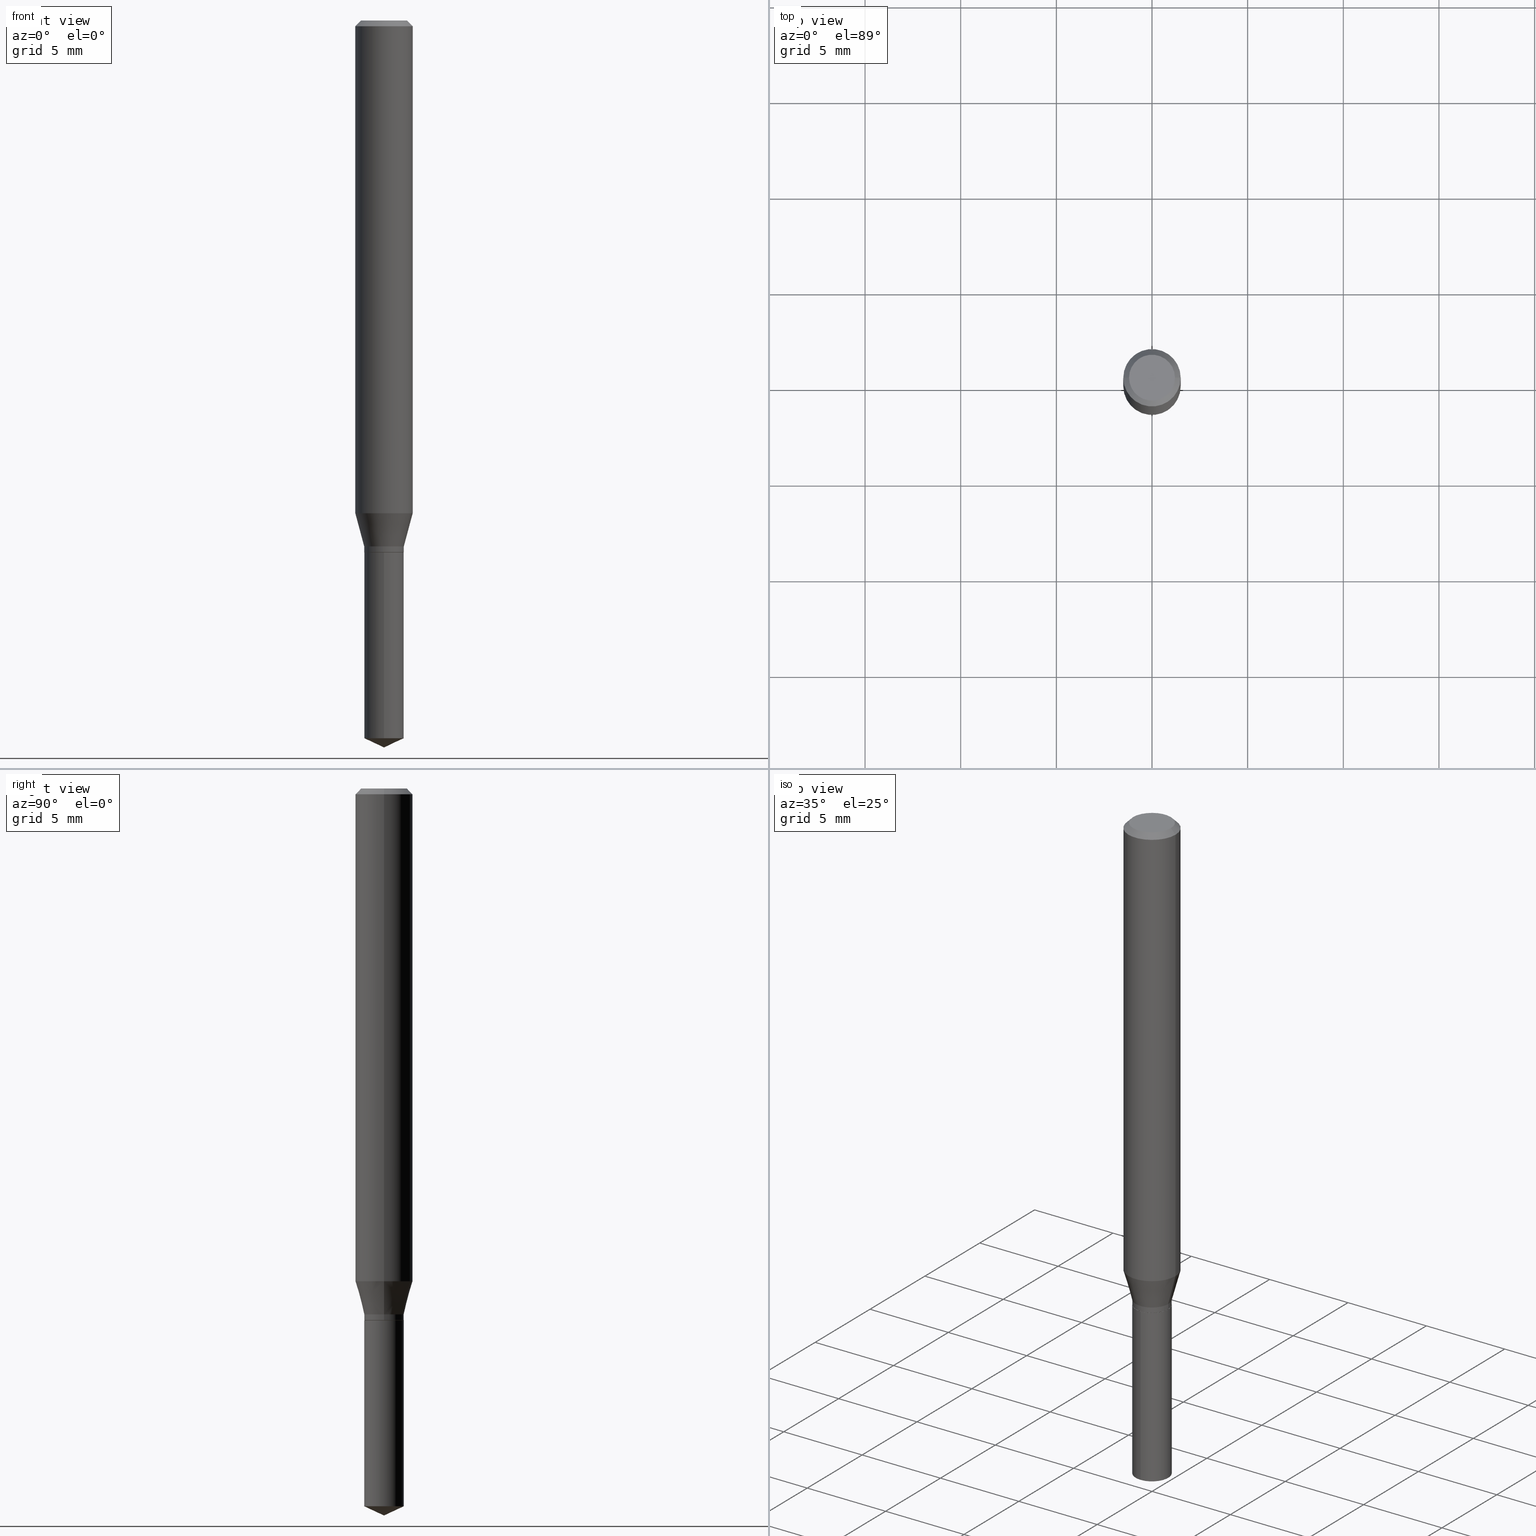
[diagram: canonical four-view strip — front | top / right | iso, engineering-drawing reading convention]
A machine part, canonical four-view strip (front | top / right | iso — engineering-drawing reading convention). The complete STEP part file that produces these views, byte-faithful:
ISO-10303-21;
HEADER;
FILE_DESCRIPTION (( 'STEP AP203' ),
    '1' );
FILE_NAME ('07609.STEP',
    '2024-04-23T23:42:43',
    ( '' ),
    ( '' ),
    'SwSTEP 2.0',
    'SolidWorks 2023',
    '' );
FILE_SCHEMA (( 'CONFIG_CONTROL_DESIGN' ));
ENDSEC;

DATA;
#1 = DIRECTION ( 'NONE',  ( -6.982962677686265922E-15, -1.000000000000000000, 3.351960728422408753E-15 ) ) ;
#2 = PERSON_AND_ORGANIZATION ( #489, #291 ) ;
#3 = PRODUCT_DEFINITION_SHAPE ( 'NONE', 'NONE',  #364 ) ;
#4 = CIRCLE ( 'NONE', #253, 0.04025000000000000105 ) ;
#5 = DIRECTION ( 'NONE',  ( -6.982962677686265922E-15, -1.000000000000000000, 6.703921456844817506E-15 ) ) ;
#6 = EDGE_CURVE ( 'NONE', #76, #73, #188, .T. ) ;
#7 = DIRECTION ( 'NONE',  ( 1.000000000000000000, -6.982962677686266711E-15, 4.876185090822587894E-29 ) ) ;
#8 = ORIENTED_EDGE ( 'NONE', *, *, #286, .F. ) ;
#9 = EDGE_CURVE ( 'NONE', #41, #119, #343, .T. ) ;
#10 = FACE_OUTER_BOUND ( 'NONE', #69, .T. ) ;
#11 = CARTESIAN_POINT ( 'NONE',  ( 2.676565608369631794E-29, -3.821426325363822773E-15, -1.094499999999999806 ) ) ;
#12 = CONICAL_SURFACE ( 'NONE', #360, 0.05905000000000000526, 0.7853981633974452814 ) ;
#13 = CARTESIAN_POINT ( 'NONE',  ( -0.04025000000000000105, -3.535432874220382392E-15, -1.094499999999999806 ) ) ;
#14 = DESIGN_CONTEXT ( 'detailed design', #209, 'design' ) ;
#15 = DIRECTION ( 'NONE',  ( 1.000000000000000000, -6.982962677686266711E-15, 0.000000000000000000 ) ) ;
#16 = LINE ( 'NONE', #83, #94 ) ;
#17 = DIRECTION ( 'NONE',  ( -2.445468806185136597E-29, 3.491481338843145583E-15, 1.000000000000000000 ) ) ;
#18 = DIRECTION ( 'NONE',  ( -6.982962677686265922E-15, -1.000000000000000000, 6.703921456844817506E-15 ) ) ;
#19 = CARTESIAN_POINT ( 'NONE',  ( -0.04075000000000000150, -3.509709254039927609E-15, -1.093999999999999861 ) ) ;
#20 = CARTESIAN_POINT ( 'NONE',  ( 0.04724000000000000421, -3.852183633974369838E-16, -3.380025165621689721E-19 ) ) ;
#21 = CARTESIAN_POINT ( 'NONE',  ( 2.675342873966538993E-29, -3.819680584694400481E-15, -1.093999999999999861 ) ) ;
#22 = AXIS2_PLACEMENT_3D ( 'NONE', #78, #432, #15 ) ;
#23 = FACE_OUTER_BOUND ( 'NONE', #270, .T. ) ;
#24 = DIRECTION ( 'NONE',  ( -2.445468806185136597E-29, 3.491481338843145583E-15, 1.000000000000000000 ) ) ;
#25 = EDGE_LOOP ( 'NONE', ( #349, #458, #339 ) ) ;
#26 = DIRECTION ( 'NONE',  ( -6.982962677686267499E-15, -1.000000000000000000, 3.520397390770466886E-15 ) ) ;
#27 = EDGE_CURVE ( 'NONE', #302, #35, #271, .T. ) ;
#28 = CALENDAR_DATE ( 2024, 23, 4 ) ;
#29 = EDGE_CURVE ( 'NONE', #235, #150, #477, .T. ) ;
#30 = AXIS2_PLACEMENT_3D ( 'NONE', #352, #88, #171 ) ;
#31 = APPROVAL_PERSON_ORGANIZATION ( #70, #399, #36 ) ;
#32 = ORIENTED_EDGE ( 'NONE', *, *, #197, .F. ) ;
#33 = DIRECTION ( 'NONE',  ( -2.445468806185136597E-29, 3.491481338843145583E-15, 1.000000000000000000 ) ) ;
#34 = PERSON_AND_ORGANIZATION ( #489, #291 ) ;
#35 = VERTEX_POINT ( 'NONE', #304 ) ;
#36 = APPROVAL_ROLE ( '' ) ;
#37 = CIRCLE ( 'NONE', #168, 0.05905000000000013016 ) ;
#38 = PRODUCT ( '07609', '07609', '', ( #368 ) ) ;
#39 = AXIS2_PLACEMENT_3D ( 'NONE', #365, #101, #173 ) ;
#40 = CARTESIAN_POINT ( 'NONE',  ( 3.612193201683081451E-29, -5.157265401199855389E-15, -1.477097962930183694 ) ) ;
#41 = VERTEX_POINT ( 'NONE', #457 ) ;
#42 = EDGE_LOOP ( 'NONE', ( #110, #122, #308, #266 ) ) ;
#43 = ADVANCED_FACE ( 'NONE', ( #198 ), #132, .T. ) ;
#44 = CARTESIAN_POINT ( 'NONE',  ( 2.676565608369631794E-29, -3.821426325363822773E-15, -1.094499999999999806 ) ) ;
#45 = CARTESIAN_POINT ( 'NONE',  ( -0.04724000000000000421, 3.504923541997677355E-16, -3.380025165670481712E-19 ) ) ;
#46 = ORIENTED_EDGE ( 'NONE', *, *, #384, .F. ) ;
#47 = AXIS2_PLACEMENT_3D ( 'NONE', #237, #161, #269 ) ;
#48 = DIRECTION ( 'NONE',  ( -2.445468806185136597E-29, 3.491481338843145583E-15, 1.000000000000000000 ) ) ;
#49 = FACE_OUTER_BOUND ( 'NONE', #179, .T. ) ;
#50 = DIRECTION ( 'NONE',  ( 2.445468806185136597E-29, -3.491481338843145583E-15, -1.000000000000000000 ) ) ;
#51 = DIRECTION ( 'NONE',  ( -2.445468806185136597E-29, 3.491481338843145583E-15, 1.000000000000000000 ) ) ;
#52 = DIRECTION ( 'NONE',  ( -2.445468806185136597E-29, 3.491481338843145583E-15, 1.000000000000000000 ) ) ;
#53 = AXIS2_PLACEMENT_3D ( 'NONE', #11, #424, #233 ) ;
#54 = VECTOR ( 'NONE', #434, 39.37007874015748143 ) ;
#55 = ORIENTED_EDGE ( 'NONE', *, *, #247, .F. ) ;
#56 = CARTESIAN_POINT ( 'NONE',  ( 2.676565608369631794E-29, -3.821426325363822773E-15, -1.094499999999999806 ) ) ;
#57 = DIRECTION ( 'NONE',  ( -2.445468806185136597E-29, 3.491481338843145583E-15, 1.000000000000000000 ) ) ;
#58 = EDGE_CURVE ( 'NONE', #35, #302, #141, .T. ) ;
#59 =( NAMED_UNIT ( * ) SI_UNIT ( $, .STERADIAN. ) SOLID_ANGLE_UNIT ( ) );
#60 = DIRECTION ( 'NONE',  ( -2.445468806185136597E-29, 3.491481338843145583E-15, 1.000000000000000000 ) ) ;
#61 = CARTESIAN_POINT ( 'NONE',  ( 0.04075000000000000150, -4.063385982145651845E-15, -1.082300000000000040 ) ) ;
#62 = VERTEX_POINT ( 'NONE', #129 ) ;
#63 = AXIS2_PLACEMENT_3D ( 'NONE', #238, #310, #236 ) ;
#64 = LENGTH_MEASURE_WITH_UNIT ( LENGTH_MEASURE( 0.02539999999999999897 ), #406 );
#65 = ADVANCED_FACE ( 'NONE', ( #357 ), #396, .T. ) ;
#66 = ORIENTED_EDGE ( 'NONE', *, *, #144, .F. ) ;
#67 = VECTOR ( 'NONE', #441, 39.37007874015748854 ) ;
#68 = CLOSED_SHELL ( 'NONE', ( #340, #65, #43, #431, #250, #348, #162, #323, #379, #448, #128, #75 ) ) ;
#69 = EDGE_LOOP ( 'NONE', ( #71, #152, #145, #227 ) ) ;
#70 = PERSON_AND_ORGANIZATION ( #489, #291 ) ;
#71 = ORIENTED_EDGE ( 'NONE', *, *, #89, .F. ) ;
#72 = PERSON_AND_ORGANIZATION_ROLE ( 'classification_officer' ) ;
#73 = VERTEX_POINT ( 'NONE', #126 ) ;
#74 = AXIS2_PLACEMENT_3D ( 'NONE', #242, #361, #476 ) ;
#75 = ADVANCED_FACE ( 'NONE', ( #166 ), #279, .T. ) ;
#76 = VERTEX_POINT ( 'NONE', #19 ) ;
#77 = ORIENTED_EDGE ( 'NONE', *, *, #282, .T. ) ;
#78 = CARTESIAN_POINT ( 'NONE',  ( 2.676565608369631794E-29, -3.821426325363822773E-15, -1.094499999999999806 ) ) ;
#79 = CARTESIAN_POINT ( 'NONE',  ( -0.05905000000000006771, 4.195754854663396409E-16, -2.904631170795525045E-30 ) ) ;
#80 = DIRECTION ( 'NONE',  ( -2.445458899330790108E-29, 3.491495526022433599E-15, 1.000000000000000000 ) ) ;
#81 = DIRECTION ( 'NONE',  ( 1.000000000000000000, -6.982962677686265922E-15, 4.876176775795935793E-29 ) ) ;
#82 = DIRECTION ( 'NONE',  ( 1.000000000000000000, -6.982962677686267499E-15, 0.000000000000000000 ) ) ;
#83 = CARTESIAN_POINT ( 'NONE',  ( -0.04075000000000000150, 2.895461648222408364E-16, -2.004466049278874144E-30 ) ) ;
#84 = LOCAL_TIME ( 19, 42, 43.00000000000000000, #186 ) ;
#85 = ORIENTED_EDGE ( 'NONE', *, *, #27, .T. ) ;
#86 = EDGE_CURVE ( 'NONE', #62, #154, #417, .T. ) ;
#87 = CYLINDRICAL_SURFACE ( 'NONE', #63, 0.04075000000000000150 ) ;
#88 = DIRECTION ( 'NONE',  ( -2.445468806185136597E-29, 3.491481338843145583E-15, 1.000000000000000000 ) ) ;
#89 = EDGE_CURVE ( 'NONE', #223, #374, #464, .T. ) ;
#90 = CARTESIAN_POINT ( 'NONE',  ( -9.261924752013118283E-28, 1.322368428517963298E-13, 37.87397874015748300 ) ) ;
#91 = CARTESIAN_POINT ( 'NONE',  ( -2.845557291156885649E-16, -0.04075000000000382483, -1.094499999999999806 ) ) ;
#92 = CARTESIAN_POINT ( 'NONE',  ( 0.04075000000000000150, -4.063385982145651845E-15, -1.082300000000000040 ) ) ;
#93 = CARTESIAN_POINT ( 'NONE',  ( 2.895461648222769761E-16, 0.04074999999999485284, -1.477097962930183916 ) ) ;
#94 = VECTOR ( 'NONE', #390, 39.37007874015748143 ) ;
#95 = CARTESIAN_POINT ( 'NONE',  ( 3.658651059288795076E-29, -5.223626456482161457E-15, -1.496099999999999985 ) ) ;
#96 = LINE ( 'NONE', #138, #67 ) ;
#97 = LINE ( 'NONE', #324, #264 ) ;
#98 = DIRECTION ( 'NONE',  ( 0.7071067811865453523, -7.319954787623248157E-15, -0.7071067811865496822 ) ) ;
#99 = LINE ( 'NONE', #216, #204 ) ;
#100 = CONICAL_SURFACE ( 'NONE', #397, 84.42940631927402251, 1.134464013796314452 ) ;
#101 = DIRECTION ( 'NONE',  ( -2.445468806185136597E-29, 3.491481338843145583E-15, 1.000000000000000000 ) ) ;
#102 = ORIENTED_EDGE ( 'NONE', *, *, #439, .T. ) ;
#103 = ADVANCED_BREP_SHAPE_REPRESENTATION ( '07609', ( #246, #244, #366 ), #319 ) ;
#104 = APPROVAL_ROLE ( '' ) ;
#105 = ORIENTED_EDGE ( 'NONE', *, *, #355, .F. ) ;
#106 = EDGE_CURVE ( 'NONE', #187, #374, #484, .T. ) ;
#107 = ORIENTED_EDGE ( 'NONE', *, *, #203, .T. ) ;
#108 = CIRCLE ( 'NONE', #226, 0.05905000000000000526 ) ;
#109 = DATE_AND_TIME ( #28, #309 ) ;
#110 = ORIENTED_EDGE ( 'NONE', *, *, #155, .F. ) ;
#111 = ORIENTED_EDGE ( 'NONE', *, *, #155, .T. ) ;
#112 = PERSON_AND_ORGANIZATION ( #489, #291 ) ;
#113 = DIRECTION ( 'NONE',  ( -2.445458899330790108E-29, 3.491495526022433205E-15, 1.000000000000000000 ) ) ;
#114 = PERSON_AND_ORGANIZATION_ROLE ( 'design_owner' ) ;
#115 = ORIENTED_EDGE ( 'NONE', *, *, #86, .F. ) ;
#116 = CC_DESIGN_PERSON_AND_ORGANIZATION_ASSIGNMENT ( #143, #251, ( #273 ) ) ;
#117 = VECTOR ( 'NONE', #473, 39.37007874015748854 ) ;
#118 = DIRECTION ( 'NONE',  ( -0.7071067811865453523, 2.468850131082234184E-15, -0.7071067811865496822 ) ) ;
#119 = VERTEX_POINT ( 'NONE', #91 ) ;
#120 = CARTESIAN_POINT ( 'NONE',  ( 2.479713855790130856E-29, -3.540374193800521229E-15, -1.014003470221489289 ) ) ;
#121 = DIRECTION ( 'NONE',  ( 1.000000000000000000, -6.982962677686266711E-15, 0.000000000000000000 ) ) ;
#122 = ORIENTED_EDGE ( 'NONE', *, *, #144, .T. ) ;
#123 = DIRECTION ( 'NONE',  ( -2.445468806185136597E-29, 3.491481338843145583E-15, 1.000000000000000000 ) ) ;
#124 = CARTESIAN_POINT ( 'NONE',  ( 2.646730888934173156E-29, -3.778830253029936509E-15, -1.082300000000000040 ) ) ;
#125 = VECTOR ( 'NONE', #118, 39.37007874015748143 ) ;
#126 = CARTESIAN_POINT ( 'NONE',  ( 0.04075000000000000150, -4.104236313810115818E-15, -1.093999999999999861 ) ) ;
#127 = SECURITY_CLASSIFICATION ( '', '', #456 ) ;
#128 = ADVANCED_FACE ( 'NONE', ( #49 ), #230, .F. ) ;
#129 = CARTESIAN_POINT ( 'NONE',  ( 0.04025000000000000105, -4.102490573140695103E-15, -1.094499999999999806 ) ) ;
#130 = VERTEX_POINT ( 'NONE', #240 ) ;
#131 = CYLINDRICAL_SURFACE ( 'NONE', #346, 0.04075000000000000150 ) ;
#132 = CYLINDRICAL_SURFACE ( 'NONE', #290, 0.05905000000000006771 ) ;
#133 = VERTEX_POINT ( 'NONE', #386 ) ;
#134 = CARTESIAN_POINT ( 'NONE',  ( -0.05905000000000011628, -3.120798708334180159E-15, -1.014003470221489289 ) ) ;
#135 = AXIS2_PLACEMENT_3D ( 'NONE', #40, #148, #5 ) ;
#136 = CARTESIAN_POINT ( 'NONE',  ( 0.05905000000000000526, -4.463468013801467941E-16, -0.01181000000000007738 ) ) ;
#137 = DIRECTION ( 'NONE',  ( 2.445468806185136597E-29, -3.491481338843145583E-15, -1.000000000000000000 ) ) ;
#138 = CARTESIAN_POINT ( 'NONE',  ( 3.658672935554494692E-29, -5.223595400746700193E-15, -1.496099999999999985 ) ) ;
#139 =( CONVERSION_BASED_UNIT ( 'INCH', #64 ) LENGTH_UNIT ( ) NAMED_UNIT ( #373 ) );
#140 = CARTESIAN_POINT ( 'NONE',  ( 0.000000000000000000, 0.000000000000000000, 0.000000000000000000 ) ) ;
#141 = CIRCLE ( 'NONE', #241, 0.04075000000000000150 ) ;
#142 = COORDINATED_UNIVERSAL_TIME_OFFSET ( 5, 0, .BEHIND. ) ;
#143 = PERSON_AND_ORGANIZATION ( #489, #291 ) ;
#144 = EDGE_CURVE ( 'NONE', #154, #62, #4, .T. ) ;
#145 = ORIENTED_EDGE ( 'NONE', *, *, #384, .T. ) ;
#146 = APPROVAL_ROLE ( '' ) ;
#147 = APPLICATION_CONTEXT ( 'configuration controlled 3d designs of mechanical parts and assemblies' ) ;
#148 = DIRECTION ( 'NONE',  ( -2.445458899330790108E-29, 3.491495526022433205E-15, 1.000000000000000000 ) ) ;
#149 = AXIS2_PLACEMENT_3D ( 'NONE', #490, #33, #185 ) ;
#150 = VERTEX_POINT ( 'NONE', #45 ) ;
#151 = AXIS2_PLACEMENT_3D ( 'NONE', #202, #234, #81 ) ;
#152 = ORIENTED_EDGE ( 'NONE', *, *, #239, .T. ) ;
#153 = ORIENTED_EDGE ( 'NONE', *, *, #479, .T. ) ;
#154 = VERTEX_POINT ( 'NONE', #321 ) ;
#155 = EDGE_CURVE ( 'NONE', #154, #76, #267, .T. ) ;
#156 = DIRECTION ( 'NONE',  ( 1.000000000000000000, -6.982962677686266711E-15, 4.876176775795936353E-29 ) ) ;
#157 = ORIENTED_EDGE ( 'NONE', *, *, #106, .T. ) ;
#158 = SHAPE_DEFINITION_REPRESENTATION ( #3, #103 ) ;
#159 = CIRCLE ( 'NONE', #436, 0.04075000000000000150 ) ;
#160 = CARTESIAN_POINT ( 'NONE',  ( -0.05905000000000000526, -1.371228808739789197E-15, -0.01181000000000007738 ) ) ;
#161 = DIRECTION ( 'NONE',  ( -2.445468806185136597E-29, 3.491481338843145583E-15, 1.000000000000000000 ) ) ;
#162 = ADVANCED_FACE ( 'NONE', ( #276 ), #263, .T. ) ;
#163 = CARTESIAN_POINT ( 'NONE',  ( 0.05905000000000000526, -4.535783407291119586E-16, -0.01181000000000007738 ) ) ;
#164 = ORIENTED_EDGE ( 'NONE', *, *, #239, .F. ) ;
#165 = FACE_OUTER_BOUND ( 'NONE', #25, .T. ) ;
#166 = FACE_OUTER_BOUND ( 'NONE', #42, .T. ) ;
#167 = CC_DESIGN_PERSON_AND_ORGANIZATION_ASSIGNMENT ( #450, #72, ( #127 ) ) ;
#168 = AXIS2_PLACEMENT_3D ( 'NONE', #212, #24, #409 ) ;
#169 = CARTESIAN_POINT ( 'NONE',  ( 2.888098660104665518E-31, -4.123439461173782112E-17, -0.01181000000000007738 ) ) ;
#170 = CIRCLE ( 'NONE', #443, 0.04075000000000000150 ) ;
#171 = DIRECTION ( 'NONE',  ( 1.000000000000000000, -6.982962677686266711E-15, 0.000000000000000000 ) ) ;
#172 = CARTESIAN_POINT ( 'NONE',  ( 2.888098660104665518E-31, -4.123439461173782112E-17, -0.01181000000000007738 ) ) ;
#173 = DIRECTION ( 'NONE',  ( 1.000000000000000000, -6.982962677686266711E-15, 0.000000000000000000 ) ) ;
#174 = LINE ( 'NONE', #328, #468 ) ;
#175 = CARTESIAN_POINT ( 'NONE',  ( 0.000000000000000000, 0.000000000000000000, 0.000000000000000000 ) ) ;
#176 = CLOSED_SHELL ( 'NONE', ( #362, #395, #342, #404, #178 ) ) ;
#177 = CARTESIAN_POINT ( 'NONE',  ( 4.132873053354867254E-48, -5.900647395337818946E-34, -1.690012582823346072E-19 ) ) ;
#178 = ADVANCED_FACE ( 'NONE', ( #325 ), #474, .F. ) ;
#179 = EDGE_LOOP ( 'NONE', ( #115, #66 ) ) ;
#180 = DATE_AND_TIME ( #190, #84 ) ;
#181 = DIRECTION ( 'NONE',  ( 0.7071067811865232589, -2.468850131082003836E-15, 0.7071067811865715536 ) ) ;
#182 = AXIS2_PLACEMENT_3D ( 'NONE', #120, #232, #465 ) ;
#183 = CC_DESIGN_APPROVAL ( #358, ( #364 ) ) ;
#184 = ORIENTED_EDGE ( 'NONE', *, *, #193, .T. ) ;
#185 = DIRECTION ( 'NONE',  ( 1.000000000000000000, -6.982962677686266711E-15, 0.000000000000000000 ) ) ;
#186 = COORDINATED_UNIVERSAL_TIME_OFFSET ( 5, 0, .BEHIND. ) ;
#187 = VERTEX_POINT ( 'NONE', #163 ) ;
#188 = CIRCLE ( 'NONE', #149, 0.04075000000000000150 ) ;
#189 = CIRCLE ( 'NONE', #345, 0.04724000000000000421 ) ;
#190 = CALENDAR_DATE ( 2024, 23, 4 ) ;
#191 = CARTESIAN_POINT ( 'NONE',  ( 8.265746106709734507E-48, -1.180129479067563789E-33, -3.380025165646692144E-19 ) ) ;
#192 = ORIENTED_EDGE ( 'NONE', *, *, #203, .F. ) ;
#193 = EDGE_CURVE ( 'NONE', #130, #475, #334, .T. ) ;
#194 = DIRECTION ( 'NONE',  ( -2.445458899330790108E-29, 3.491495526022433205E-15, 1.000000000000000000 ) ) ;
#195 = CARTESIAN_POINT ( 'NONE',  ( 3.612193201683081451E-29, -5.157265401199855389E-15, -1.477097962930183694 ) ) ;
#196 = ORIENTED_EDGE ( 'NONE', *, *, #439, .F. ) ;
#197 = EDGE_CURVE ( 'NONE', #76, #130, #16, .T. ) ;
#198 = FACE_OUTER_BOUND ( 'NONE', #418, .T. ) ;
#199 = ORIENTED_EDGE ( 'NONE', *, *, #86, .T. ) ;
#200 = PRODUCT_RELATED_PRODUCT_CATEGORY ( 'detail', '', ( #38 ) ) ;
#201 = CARTESIAN_POINT ( 'NONE',  ( 2.646730888934173156E-29, -3.778830253029936509E-15, -1.082300000000000040 ) ) ;
#202 = CARTESIAN_POINT ( 'NONE',  ( 2.676565608369631794E-29, -3.821426325363822773E-15, -1.094499999999999806 ) ) ;
#203 = EDGE_CURVE ( 'NONE', #475, #130, #159, .T. ) ;
#204 = VECTOR ( 'NONE', #181, 39.37007874015748854 ) ;
#205 = DIRECTION ( 'NONE',  ( 1.000000000000000000, -6.982962677686266711E-15, 4.876185090822587894E-29 ) ) ;
#206 = DIRECTION ( 'NONE',  ( 1.000000000000000000, -6.982962677686266711E-15, 0.000000000000000000 ) ) ;
#207 = EDGE_CURVE ( 'NONE', #475, #133, #483, .T. ) ;
#208 = DIRECTION ( 'NONE',  ( -1.000000000000000000, 6.982962677686267499E-15, 0.000000000000000000 ) ) ;
#209 = APPLICATION_CONTEXT ( 'configuration controlled 3d designs of mechanical parts and assemblies' ) ;
#210 = CARTESIAN_POINT ( 'NONE',  ( -9.261924752013118283E-28, 1.322368428517963298E-13, 37.87397874015748300 ) ) ;
#211 = AXIS2_PLACEMENT_3D ( 'NONE', #344, #113, #1 ) ;
#212 = CARTESIAN_POINT ( 'NONE',  ( 2.479713855790130856E-29, -3.540374193800521229E-15, -1.014003470221489289 ) ) ;
#213 = CONICAL_SURFACE ( 'NONE', #272, 84.42940631927402251, 1.134464013796314452 ) ;
#214 = APPROVAL_PERSON_ORGANIZATION ( #376, #375, #104 ) ;
#215 = LINE ( 'NONE', #95, #117 ) ;
#216 = CARTESIAN_POINT ( 'NONE',  ( 0.04025000000000000105, -4.102490573140695103E-15, -1.094499999999999806 ) ) ;
#217 = APPLICATION_PROTOCOL_DEFINITION ( 'international standard', 'config_control_design', 1994, #209 ) ;
#218 = DIRECTION ( 'NONE',  ( -2.445468806185136877E-29, 3.491481338843145188E-15, 1.000000000000000000 ) ) ;
#219 = PERSON_AND_ORGANIZATION_ROLE ( 'creator' ) ;
#220 = EDGE_LOOP ( 'NONE', ( #32, #367, #296, #453 ) ) ;
#221 = ORIENTED_EDGE ( 'NONE', *, *, #317, .F. ) ;
#222 = CALENDAR_DATE ( 2024, 23, 4 ) ;
#223 = VERTEX_POINT ( 'NONE', #134 ) ;
#224 = COORDINATED_UNIVERSAL_TIME_OFFSET ( 5, 0, .BEHIND. ) ;
#225 = ORIENTED_EDGE ( 'NONE', *, *, #207, .F. ) ;
#226 = AXIS2_PLACEMENT_3D ( 'NONE', #169, #123, #82 ) ;
#227 = ORIENTED_EDGE ( 'NONE', *, *, #332, .F. ) ;
#228 = ORIENTED_EDGE ( 'NONE', *, *, #106, .F. ) ;
#229 = FACE_OUTER_BOUND ( 'NONE', #455, .T. ) ;
#230 = PLANE ( 'NONE',  #151 ) ;
#231 = ORIENTED_EDGE ( 'NONE', *, *, #289, .F. ) ;
#232 = DIRECTION ( 'NONE',  ( -2.445468806185136597E-29, 3.491481338843145583E-15, 1.000000000000000000 ) ) ;
#233 = DIRECTION ( 'NONE',  ( 6.982962677686265922E-15, 1.000000000000000000, -3.491495526022433599E-15 ) ) ;
#234 = DIRECTION ( 'NONE',  ( -2.438088387897960049E-29, 3.491481338843145188E-15, 1.000000000000000000 ) ) ;
#235 = VERTEX_POINT ( 'NONE', #20 ) ;
#236 = DIRECTION ( 'NONE',  ( 1.000000000000000000, -6.982962677686266711E-15, 4.876176775795935793E-29 ) ) ;
#237 = CARTESIAN_POINT ( 'NONE',  ( 2.676565608369631794E-29, -3.821426325363822773E-15, -1.094499999999999806 ) ) ;
#238 = CARTESIAN_POINT ( 'NONE',  ( 0.000000000000000000, 0.000000000000000000, 0.000000000000000000 ) ) ;
#239 = EDGE_CURVE ( 'NONE', #223, #133, #37, .T. ) ;
#240 = CARTESIAN_POINT ( 'NONE',  ( -0.04075000000000000150, -3.509709254039927609E-15, -1.082300000000000040 ) ) ;
#241 = AXIS2_PLACEMENT_3D ( 'NONE', #195, #430, #18 ) ;
#242 = CARTESIAN_POINT ( 'NONE',  ( 2.676565608369631794E-29, -3.821426325363822773E-15, -1.094499999999999806 ) ) ;
#243 = CYLINDRICAL_SURFACE ( 'NONE', #442, 0.04075000000000000150 ) ;
#244 = MANIFOLD_SOLID_BREP ( 'Body-Move/Copy2[2]', #68 ) ;
#245 = DIRECTION ( 'NONE',  ( -6.982962677686265922E-15, -1.000000000000000000, 3.351960728422408753E-15 ) ) ;
#246 = MANIFOLD_SOLID_BREP ( 'Body-Move/Copy2[1]', #176 ) ;
#247 = EDGE_CURVE ( 'NONE', #73, #475, #174, .T. ) ;
#248 = AXIS2_PLACEMENT_3D ( 'NONE', #44, #194, #351 ) ;
#249 = AXIS2_PLACEMENT_3D ( 'NONE', #177, #277, #331 ) ;
#250 = ADVANCED_FACE ( 'NONE', ( #481 ), #243, .T. ) ;
#251 = PERSON_AND_ORGANIZATION_ROLE ( 'design_supplier' ) ;
#252 = ORIENTED_EDGE ( 'NONE', *, *, #350, .F. ) ;
#253 = AXIS2_PLACEMENT_3D ( 'NONE', #354, #394, #121 ) ;
#254 = ORIENTED_EDGE ( 'NONE', *, *, #317, .T. ) ;
#255 = AXIS2_PLACEMENT_3D ( 'NONE', #191, #347, #7 ) ;
#256 = COORDINATED_UNIVERSAL_TIME_OFFSET ( 5, 0, .BEHIND. ) ;
#257 = ORIENTED_EDGE ( 'NONE', *, *, #58, .T. ) ;
#258 = EDGE_LOOP ( 'NONE', ( #107, #411, #221, #225 ) ) ;
#259 = APPROVAL_DATE_TIME ( #180, #375 ) ;
#260 = ORIENTED_EDGE ( 'NONE', *, *, #58, .F. ) ;
#261 = CALENDAR_DATE ( 2024, 23, 4 ) ;
#262 = ORIENTED_EDGE ( 'NONE', *, *, #472, .F. ) ;
#263 = CONICAL_SURFACE ( 'NONE', #371, 0.04075000000000000150, 0.2617993877991500740 ) ;
#264 = VECTOR ( 'NONE', #402, 39.37007874015748143 ) ;
#265 = DIRECTION ( 'NONE',  ( -2.445458899330790108E-29, 3.491495526022433205E-15, 1.000000000000000000 ) ) ;
#266 = ORIENTED_EDGE ( 'NONE', *, *, #6, .F. ) ;
#267 = LINE ( 'NONE', #13, #388 ) ;
#268 = CC_DESIGN_DATE_AND_TIME_ASSIGNMENT ( #297, #301, ( #364 ) ) ;
#269 = DIRECTION ( 'NONE',  ( 1.000000000000000000, -6.982962677686266711E-15, 0.000000000000000000 ) ) ;
#270 = EDGE_LOOP ( 'NONE', ( #326, #287 ) ) ;
#271 = CIRCLE ( 'NONE', #135, 0.04075000000000000150 ) ;
#272 = AXIS2_PLACEMENT_3D ( 'NONE', #90, #265, #315 ) ;
#273 = PRODUCT_DEFINITION_FORMATION_WITH_SPECIFIED_SOURCE ( 'ANY', '', #38, .NOT_KNOWN. ) ;
#274 = FACE_OUTER_BOUND ( 'NONE', #220, .T. ) ;
#275 = DIRECTION ( 'NONE',  ( -2.445468806185136877E-29, 3.491481338843145188E-15, 1.000000000000000000 ) ) ;
#276 = FACE_OUTER_BOUND ( 'NONE', #341, .T. ) ;
#277 = DIRECTION ( 'NONE',  ( 2.438088387897960049E-29, -3.491481338843145188E-15, -1.000000000000000000 ) ) ;
#278 = DIRECTION ( 'NONE',  ( -0.2588190451025213501, 5.211531920934551042E-15, 0.9659258262890682012 ) ) ;
#279 = CONICAL_SURFACE ( 'NONE', #47, 0.04025000000000000105, 0.7853981633974141952 ) ;
#280 = DIRECTION ( 'NONE',  ( -2.445458899330790108E-29, 3.491495526022433205E-15, 1.000000000000000000 ) ) ;
#281 = CC_DESIGN_SECURITY_CLASSIFICATION ( #127, ( #273 ) ) ;
#282 = EDGE_CURVE ( 'NONE', #312, #302, #96, .T. ) ;
#283 = ORIENTED_EDGE ( 'NONE', *, *, #332, .T. ) ;
#284 = FACE_OUTER_BOUND ( 'NONE', #372, .T. ) ;
#285 = DIRECTION ( 'NONE',  ( 0.2588190451025213501, 1.565188264969621968E-15, 0.9659258262890682012 ) ) ;
#286 = EDGE_CURVE ( 'NONE', #62, #73, #99, .T. ) ;
#287 = ORIENTED_EDGE ( 'NONE', *, *, #29, .T. ) ;
#288 = FACE_OUTER_BOUND ( 'NONE', #258, .T. ) ;
#289 = EDGE_CURVE ( 'NONE', #130, #223, #335, .T. ) ;
#290 = AXIS2_PLACEMENT_3D ( 'NONE', #311, #422, #387 ) ;
#291 = ORGANIZATION ( 'UNSPECIFIED', 'UNSPECIFIED', '' ) ;
#292 = CC_DESIGN_PERSON_AND_ORGANIZATION_ASSIGNMENT ( #2, #114, ( #38 ) ) ;
#293 = CALENDAR_DATE ( 2024, 23, 4 ) ;
#294 = EDGE_LOOP ( 'NONE', ( #102, #383 ) ) ;
#295 = APPROVAL_STATUS ( 'not_yet_approved' ) ;
#296 = ORIENTED_EDGE ( 'NONE', *, *, #247, .T. ) ;
#297 = DATE_AND_TIME ( #222, #428 ) ;
#298 = EDGE_LOOP ( 'NONE', ( #262, #85, #414, #300 ) ) ;
#299 = CONICAL_SURFACE ( 'NONE', #22, 0.04025000000000000105, 0.7853981633974141952 ) ;
#300 = ORIENTED_EDGE ( 'NONE', *, *, #9, .F. ) ;
#301 = DATE_TIME_ROLE ( 'creation_date' ) ;
#302 = VERTEX_POINT ( 'NONE', #93 ) ;
#303 = CC_DESIGN_PERSON_AND_ORGANIZATION_ASSIGNMENT ( #34, #219, ( #364 ) ) ;
#304 = CARTESIAN_POINT ( 'NONE',  ( -2.845557291156792958E-16, -0.04075000000000517791, -1.477097962930183472 ) ) ;
#305 = DATE_AND_TIME ( #293, #336 ) ;
#306 = EDGE_CURVE ( 'NONE', #35, #119, #435, .T. ) ;
#307 = CARTESIAN_POINT ( 'NONE',  ( -0.05905000000000000526, 3.711095515056362547E-16, -0.01181000000000007738 ) ) ;
#308 = ORIENTED_EDGE ( 'NONE', *, *, #286, .T. ) ;
#309 = LOCAL_TIME ( 19, 42, 43.00000000000000000, #224 ) ;
#310 = DIRECTION ( 'NONE',  ( -2.445468806185136597E-29, 3.491481338843145583E-15, 1.000000000000000000 ) ) ;
#311 = CARTESIAN_POINT ( 'NONE',  ( 0.000000000000000000, 0.000000000000000000, 0.000000000000000000 ) ) ;
#312 = VERTEX_POINT ( 'NONE', #463 ) ;
#313 = CARTESIAN_POINT ( 'NONE',  ( 2.646730888934173156E-29, -3.778830253029936509E-15, -1.082300000000000040 ) ) ;
#314 = ORIENTED_EDGE ( 'NONE', *, *, #445, .F. ) ;
#315 = DIRECTION ( 'NONE',  ( -6.982962677686267499E-15, -1.000000000000000000, 3.520397390770466886E-15 ) ) ;
#316 = DIRECTION ( 'NONE',  ( 1.000000000000000000, -6.982962677686266711E-15, 0.000000000000000000 ) ) ;
#317 = EDGE_CURVE ( 'NONE', #133, #223, #353, .T. ) ;
#318 = AXIS2_PLACEMENT_3D ( 'NONE', #172, #48, #392 ) ;
#319 =( GEOMETRIC_REPRESENTATION_CONTEXT ( 3 ) GLOBAL_UNCERTAINTY_ASSIGNED_CONTEXT ( ( #423 ) ) GLOBAL_UNIT_ASSIGNED_CONTEXT ( ( #139, #480, #59 ) ) REPRESENTATION_CONTEXT ( 'NONE', 'WORKASPACE' ) );
#320 = CIRCLE ( 'NONE', #74, 0.04075000000000000150 ) ;
#321 = CARTESIAN_POINT ( 'NONE',  ( -0.04025000000000000105, -3.532783647046271191E-15, -1.094499999999999806 ) ) ;
#322 = ORIENTED_EDGE ( 'NONE', *, *, #207, .T. ) ;
#323 = ADVANCED_FACE ( 'NONE', ( #10 ), #460, .T. ) ;
#324 = CARTESIAN_POINT ( 'NONE',  ( 0.05905000000000006771, -4.123439461173745257E-16, 2.879382386107503723E-30 ) ) ;
#325 = FACE_OUTER_BOUND ( 'NONE', #294, .T. ) ;
#326 = ORIENTED_EDGE ( 'NONE', *, *, #350, .T. ) ;
#327 = CARTESIAN_POINT ( 'NONE',  ( 2.888098660104665518E-31, -4.123439461173782112E-17, -0.01181000000000007738 ) ) ;
#328 = CARTESIAN_POINT ( 'NONE',  ( 0.04075000000000000150, -2.845557291157153862E-16, 1.987042036136843892E-30 ) ) ;
#329 = VECTOR ( 'NONE', #80, 39.37007874015748143 ) ;
#330 = DIRECTION ( 'NONE',  ( 0.000000000000000000, 0.000000000000000000, 1.000000000000000000 ) ) ;
#331 = DIRECTION ( 'NONE',  ( -1.000000000000000000, 6.982962677686265922E-15, -4.876176775795935793E-29 ) ) ;
#332 = EDGE_CURVE ( 'NONE', #374, #187, #108, .T. ) ;
#333 = DATE_TIME_ROLE ( 'classification_date' ) ;
#334 = CIRCLE ( 'NONE', #380, 0.04075000000000000150 ) ;
#335 = LINE ( 'NONE', #487, #451 ) ;
#336 = LOCAL_TIME ( 19, 42, 43.00000000000000000, #142 ) ;
#337 = EDGE_LOOP ( 'NONE', ( #153, #461, #192, #55 ) ) ;
#338 = APPROVAL_DATE_TIME ( #109, #358 ) ;
#339 = ORIENTED_EDGE ( 'NONE', *, *, #27, .F. ) ;
#340 = ADVANCED_FACE ( 'NONE', ( #429 ), #299, .T. ) ;
#341 = EDGE_LOOP ( 'NONE', ( #231, #184, #322, #164 ) ) ;
#342 = ADVANCED_FACE ( 'NONE', ( #165 ), #213, .T. ) ;
#343 = CIRCLE ( 'NONE', #211, 0.04075000000000000150 ) ;
#344 = CARTESIAN_POINT ( 'NONE',  ( 2.676565608369631794E-29, -3.821426325363822773E-15, -1.094499999999999806 ) ) ;
#345 = AXIS2_PLACEMENT_3D ( 'NONE', #393, #51, #205 ) ;
#346 = AXIS2_PLACEMENT_3D ( 'NONE', #56, #438, #245 ) ;
#347 = DIRECTION ( 'NONE',  ( -2.445468806185136597E-29, 3.491481338843145583E-15, 1.000000000000000000 ) ) ;
#348 = ADVANCED_FACE ( 'NONE', ( #274 ), #87, .T. ) ;
#349 = ORIENTED_EDGE ( 'NONE', *, *, #282, .F. ) ;
#350 = EDGE_CURVE ( 'NONE', #150, #235, #189, .T. ) ;
#351 = DIRECTION ( 'NONE',  ( -6.982962677686265922E-15, -1.000000000000000000, 3.351960728422408753E-15 ) ) ;
#352 = CARTESIAN_POINT ( 'NONE',  ( 2.676565608369631794E-29, -3.821426325363822773E-15, -1.094499999999999806 ) ) ;
#353 = CIRCLE ( 'NONE', #182, 0.05905000000000013016 ) ;
#354 = CARTESIAN_POINT ( 'NONE',  ( 2.676565608369631794E-29, -3.821426325363822773E-15, -1.094499999999999806 ) ) ;
#355 = EDGE_CURVE ( 'NONE', #150, #374, #421, .T. ) ;
#356 = DIRECTION ( 'NONE',  ( -2.445468806185136597E-29, 3.491481338843145583E-15, 1.000000000000000000 ) ) ;
#357 = FACE_OUTER_BOUND ( 'NONE', #377, .T. ) ;
#358 = APPROVAL ( #295, 'UNSPECIFIED' ) ;
#359 = AXIS2_PLACEMENT_3D ( 'NONE', #433, #50, #467 ) ;
#360 = AXIS2_PLACEMENT_3D ( 'NONE', #327, #137, #208 ) ;
#361 = DIRECTION ( 'NONE',  ( -2.445458899330790108E-29, 3.491495526022433205E-15, 1.000000000000000000 ) ) ;
#362 = ADVANCED_FACE ( 'NONE', ( #229 ), #385, .T. ) ;
#363 = LINE ( 'NONE', #478, #54 ) ;
#364 = PRODUCT_DEFINITION ( 'UNKNOWN', '', #273, #14 ) ;
#365 = CARTESIAN_POINT ( 'NONE',  ( 2.646730888934173156E-29, -3.778830253029936509E-15, -1.082300000000000040 ) ) ;
#366 = AXIS2_PLACEMENT_3D ( 'NONE', #175, #330, #454 ) ;
#367 = ORIENTED_EDGE ( 'NONE', *, *, #6, .T. ) ;
#368 = MECHANICAL_CONTEXT ( 'NONE', #147, 'mechanical' ) ;
#369 = DIRECTION ( 'NONE',  ( 1.000000000000000000, -6.982962677686266711E-15, 4.876176775795935793E-29 ) ) ;
#370 = PERSON_AND_ORGANIZATION_ROLE ( 'creator' ) ;
#371 = AXIS2_PLACEMENT_3D ( 'NONE', #124, #52, #206 ) ;
#372 = EDGE_LOOP ( 'NONE', ( #314, #252, #416, #283 ) ) ;
#373 = DIMENSIONAL_EXPONENTS ( 1.000000000000000000, 0.000000000000000000, 0.000000000000000000, 0.000000000000000000, 0.000000000000000000, 0.000000000000000000, 0.000000000000000000 ) ;
#374 = VERTEX_POINT ( 'NONE', #160 ) ;
#375 = APPROVAL ( #447, 'UNSPECIFIED' ) ;
#376 = PERSON_AND_ORGANIZATION ( #489, #291 ) ;
#377 = EDGE_LOOP ( 'NONE', ( #401, #427, #157, #105 ) ) ;
#378 = APPROVAL_STATUS ( 'not_yet_approved' ) ;
#379 = ADVANCED_FACE ( 'NONE', ( #284 ), #12, .T. ) ;
#380 = AXIS2_PLACEMENT_3D ( 'NONE', #313, #466, #425 ) ;
#381 = EDGE_LOOP ( 'NONE', ( #446, #77, #260 ) ) ;
#382 = CONICAL_SURFACE ( 'NONE', #39, 0.04075000000000000150, 0.2617993877991500740 ) ;
#383 = ORIENTED_EDGE ( 'NONE', *, *, #9, .T. ) ;
#384 = EDGE_CURVE ( 'NONE', #133, #187, #97, .T. ) ;
#385 = CYLINDRICAL_SURFACE ( 'NONE', #248, 0.04075000000000000150 ) ;
#386 = CARTESIAN_POINT ( 'NONE',  ( 0.05905000000000011628, -3.952718139917895755E-15, -1.014003470221489289 ) ) ;
#387 = DIRECTION ( 'NONE',  ( 1.000000000000000000, -6.982962677686266711E-15, 4.876176775795936353E-29 ) ) ;
#388 = VECTOR ( 'NONE', #471, 39.37007874015748854 ) ;
#389 = EDGE_CURVE ( 'NONE', #312, #35, #215, .T. ) ;
#390 = DIRECTION ( 'NONE',  ( -2.445468806185136877E-29, 3.491481338843145188E-15, 1.000000000000000000 ) ) ;
#391 = CC_DESIGN_DATE_AND_TIME_ASSIGNMENT ( #413, #333, ( #127 ) ) ;
#392 = DIRECTION ( 'NONE',  ( 1.000000000000000000, -6.982962677686267499E-15, 0.000000000000000000 ) ) ;
#393 = CARTESIAN_POINT ( 'NONE',  ( 8.265746106709734507E-48, -1.180129479067563789E-33, -3.380025165646692144E-19 ) ) ;
#394 = DIRECTION ( 'NONE',  ( -2.445468806185136597E-29, 3.491481338843145583E-15, 1.000000000000000000 ) ) ;
#395 = ADVANCED_FACE ( 'NONE', ( #408 ), #100, .T. ) ;
#396 = CONICAL_SURFACE ( 'NONE', #359, 0.05905000000000000526, 0.7853981633974452814 ) ;
#397 = AXIS2_PLACEMENT_3D ( 'NONE', #210, #280, #26 ) ;
#398 = CARTESIAN_POINT ( 'NONE',  ( -2.845557291156885649E-16, -0.04075000000000382483, -1.094499999999999806 ) ) ;
#399 = APPROVAL ( #378, 'UNSPECIFIED' ) ;
#400 = FACE_OUTER_BOUND ( 'NONE', #298, .T. ) ;
#401 = ORIENTED_EDGE ( 'NONE', *, *, #29, .F. ) ;
#402 = DIRECTION ( 'NONE',  ( -2.445468806185136877E-29, 3.491481338843145188E-15, 1.000000000000000000 ) ) ;
#403 = ORIENTED_EDGE ( 'NONE', *, *, #89, .T. ) ;
#404 = ADVANCED_FACE ( 'NONE', ( #400 ), #131, .T. ) ;
#405 = AXIS2_PLACEMENT_3D ( 'NONE', #470, #17, #156 ) ;
#406 =( LENGTH_UNIT ( ) NAMED_UNIT ( * ) SI_UNIT ( $, .METRE. ) );
#407 = LOCAL_TIME ( 19, 42, 43.00000000000000000, #256 ) ;
#408 = FACE_OUTER_BOUND ( 'NONE', #381, .T. ) ;
#409 = DIRECTION ( 'NONE',  ( 1.000000000000000000, -6.982962677686265133E-15, 0.000000000000000000 ) ) ;
#410 = VECTOR ( 'NONE', #275, 39.37007874015748143 ) ;
#411 = ORIENTED_EDGE ( 'NONE', *, *, #289, .T. ) ;
#412 = ORIENTED_EDGE ( 'NONE', *, *, #479, .F. ) ;
#413 = DATE_AND_TIME ( #261, #407 ) ;
#414 = ORIENTED_EDGE ( 'NONE', *, *, #306, .T. ) ;
#415 = PERSON_AND_ORGANIZATION ( #489, #291 ) ;
#416 = ORIENTED_EDGE ( 'NONE', *, *, #355, .T. ) ;
#417 = CIRCLE ( 'NONE', #30, 0.04025000000000000105 ) ;
#418 = EDGE_LOOP ( 'NONE', ( #254, #403, #228, #46 ) ) ;
#419 = CC_DESIGN_APPROVAL ( #375, ( #273 ) ) ;
#420 = ORIENTED_EDGE ( 'NONE', *, *, #472, .T. ) ;
#421 = LINE ( 'NONE', #307, #125 ) ;
#422 = DIRECTION ( 'NONE',  ( -2.445468806185136597E-29, 3.491481338843145583E-15, 1.000000000000000000 ) ) ;
#423 = UNCERTAINTY_MEASURE_WITH_UNIT (LENGTH_MEASURE( 1.000000000000000082E-05 ), #139, 'distance_accuracy_value', 'NONE');
#424 = DIRECTION ( 'NONE',  ( 2.445458899330789267E-29, -3.491495526022433599E-15, -1.000000000000000000 ) ) ;
#425 = DIRECTION ( 'NONE',  ( 1.000000000000000000, -6.982962677686266711E-15, 0.000000000000000000 ) ) ;
#426 = VECTOR ( 'NONE', #285, 39.37007874015747433 ) ;
#427 = ORIENTED_EDGE ( 'NONE', *, *, #445, .T. ) ;
#428 = LOCAL_TIME ( 19, 42, 43.00000000000000000, #486 ) ;
#429 = FACE_OUTER_BOUND ( 'NONE', #449, .T. ) ;
#430 = DIRECTION ( 'NONE',  ( -2.445458899330790108E-29, 3.491495526022433205E-15, 1.000000000000000000 ) ) ;
#431 = ADVANCED_FACE ( 'NONE', ( #288 ), #382, .T. ) ;
#432 = DIRECTION ( 'NONE',  ( -2.445468806185136597E-29, 3.491481338843145583E-15, 1.000000000000000000 ) ) ;
#433 = CARTESIAN_POINT ( 'NONE',  ( 2.888098660104665518E-31, -4.123439461173782112E-17, -0.01181000000000007738 ) ) ;
#434 = DIRECTION ( 'NONE',  ( -2.445458899330790108E-29, 3.491495526022433599E-15, 1.000000000000000000 ) ) ;
#435 = LINE ( 'NONE', #398, #329 ) ;
#436 = AXIS2_PLACEMENT_3D ( 'NONE', #201, #356, #316 ) ;
#437 = PLANE ( 'NONE',  #249 ) ;
#438 = DIRECTION ( 'NONE',  ( -2.445458899330790108E-29, 3.491495526022433205E-15, 1.000000000000000000 ) ) ;
#439 = EDGE_CURVE ( 'NONE', #119, #41, #320, .T. ) ;
#440 = LINE ( 'NONE', #136, #485 ) ;
#441 = DIRECTION ( 'NONE',  ( 6.439704144417024831E-15, 0.9063077870366516020, 0.4226182617406960551 ) ) ;
#442 = AXIS2_PLACEMENT_3D ( 'NONE', #140, #57, #369 ) ;
#443 = AXIS2_PLACEMENT_3D ( 'NONE', #21, #60, #482 ) ;
#444 = APPLICATION_PROTOCOL_DEFINITION ( 'international standard', 'config_control_design', 1994, #147 ) ;
#445 = EDGE_CURVE ( 'NONE', #235, #187, #440, .T. ) ;
#446 = ORIENTED_EDGE ( 'NONE', *, *, #389, .F. ) ;
#447 = APPROVAL_STATUS ( 'not_yet_approved' ) ;
#448 = ADVANCED_FACE ( 'NONE', ( #23 ), #437, .F. ) ;
#449 = EDGE_LOOP ( 'NONE', ( #199, #111, #412, #8 ) ) ;
#450 = PERSON_AND_ORGANIZATION ( #489, #291 ) ;
#451 = VECTOR ( 'NONE', #278, 39.37007874015747433 ) ;
#452 = ORIENTED_EDGE ( 'NONE', *, *, #306, .F. ) ;
#453 = ORIENTED_EDGE ( 'NONE', *, *, #193, .F. ) ;
#454 = DIRECTION ( 'NONE',  ( 1.000000000000000000, 0.000000000000000000, 0.000000000000000000 ) ) ;
#455 = EDGE_LOOP ( 'NONE', ( #257, #420, #196, #452 ) ) ;
#456 = SECURITY_CLASSIFICATION_LEVEL ( 'unclassified' ) ;
#457 = CARTESIAN_POINT ( 'NONE',  ( 2.895461648222769268E-16, 0.04074999999999617817, -1.094500000000000028 ) ) ;
#458 = ORIENTED_EDGE ( 'NONE', *, *, #389, .T. ) ;
#459 = APPROVAL_DATE_TIME ( #305, #399 ) ;
#460 = CYLINDRICAL_SURFACE ( 'NONE', #405, 0.05905000000000006771 ) ;
#461 = ORIENTED_EDGE ( 'NONE', *, *, #197, .T. ) ;
#462 = CC_DESIGN_APPROVAL ( #399, ( #127 ) ) ;
#463 = CARTESIAN_POINT ( 'NONE',  ( 3.658651059288794515E-29, -5.223626456482161457E-15, -1.496099999999999985 ) ) ;
#464 = LINE ( 'NONE', #79, #410 ) ;
#465 = DIRECTION ( 'NONE',  ( 1.000000000000000000, -6.982962677686265133E-15, 0.000000000000000000 ) ) ;
#466 = DIRECTION ( 'NONE',  ( -2.445468806185136597E-29, 3.491481338843145583E-15, 1.000000000000000000 ) ) ;
#467 = DIRECTION ( 'NONE',  ( -1.000000000000000000, 6.982962677686267499E-15, 0.000000000000000000 ) ) ;
#468 = VECTOR ( 'NONE', #218, 39.37007874015748143 ) ;
#469 = APPROVAL_PERSON_ORGANIZATION ( #112, #358, #146 ) ;
#470 = CARTESIAN_POINT ( 'NONE',  ( 0.000000000000000000, 0.000000000000000000, 0.000000000000000000 ) ) ;
#471 = DIRECTION ( 'NONE',  ( -0.7071067811865232589, 7.493145998870265808E-15, 0.7071067811865715536 ) ) ;
#472 = EDGE_CURVE ( 'NONE', #302, #41, #363, .T. ) ;
#473 = DIRECTION ( 'NONE',  ( -6.328713451373368590E-15, -0.9063077870366484934, 0.4226182617407022724 ) ) ;
#474 = PLANE ( 'NONE',  #53 ) ;
#475 = VERTEX_POINT ( 'NONE', #92 ) ;
#476 = DIRECTION ( 'NONE',  ( -6.982962677686265922E-15, -1.000000000000000000, 3.351960728422408753E-15 ) ) ;
#477 = CIRCLE ( 'NONE', #255, 0.04724000000000000421 ) ;
#478 = CARTESIAN_POINT ( 'NONE',  ( 2.895461648222675098E-16, 0.04074999999999617817, -1.094500000000000028 ) ) ;
#479 = EDGE_CURVE ( 'NONE', #73, #76, #170, .T. ) ;
#480 =( NAMED_UNIT ( * ) PLANE_ANGLE_UNIT ( ) SI_UNIT ( $, .RADIAN. ) );
#481 = FACE_OUTER_BOUND ( 'NONE', #337, .T. ) ;
#482 = DIRECTION ( 'NONE',  ( 1.000000000000000000, -6.982962677686266711E-15, 0.000000000000000000 ) ) ;
#483 = LINE ( 'NONE', #61, #426 ) ;
#484 = CIRCLE ( 'NONE', #318, 0.05905000000000000526 ) ;
#485 = VECTOR ( 'NONE', #98, 39.37007874015748143 ) ;
#486 = COORDINATED_UNIVERSAL_TIME_OFFSET ( 5, 0, .BEHIND. ) ;
#487 = CARTESIAN_POINT ( 'NONE',  ( -0.04075000000000000150, -3.489284088207695228E-15, -1.082300000000000040 ) ) ;
#488 = CC_DESIGN_PERSON_AND_ORGANIZATION_ASSIGNMENT ( #415, #370, ( #273 ) ) ;
#489 = PERSON ( 'UNSPECIFIED', 'UNSPECIFIED', 'UNSPECIFIED', ('UNSPECIFIED'), ('UNSPECIFIED'), ('UNSPECIFIED') ) ;
#490 = CARTESIAN_POINT ( 'NONE',  ( 2.675342873966538993E-29, -3.819680584694400481E-15, -1.093999999999999861 ) ) ;
ENDSEC;
END-ISO-10303-21;
